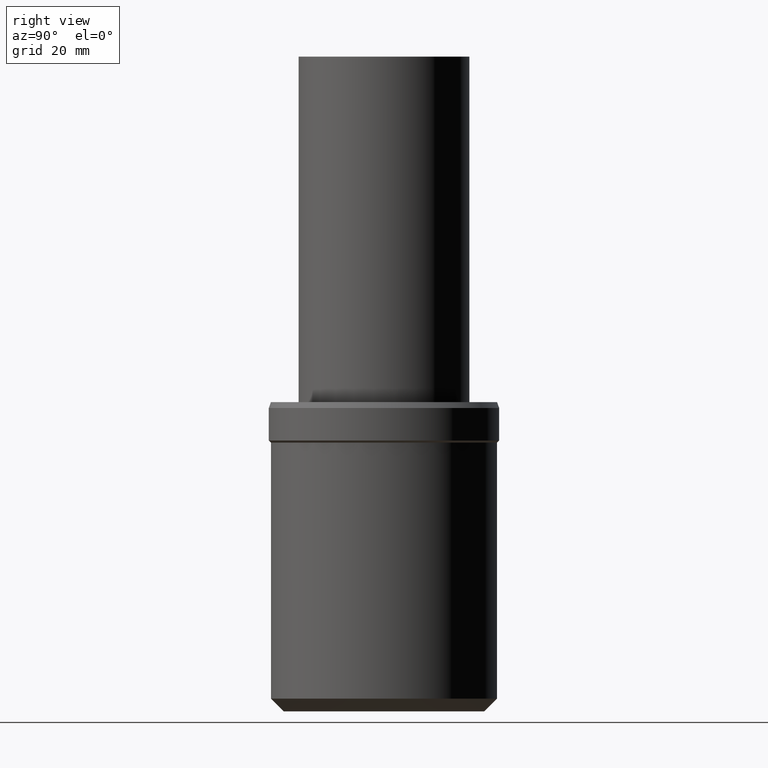
[diagram: clean part render]
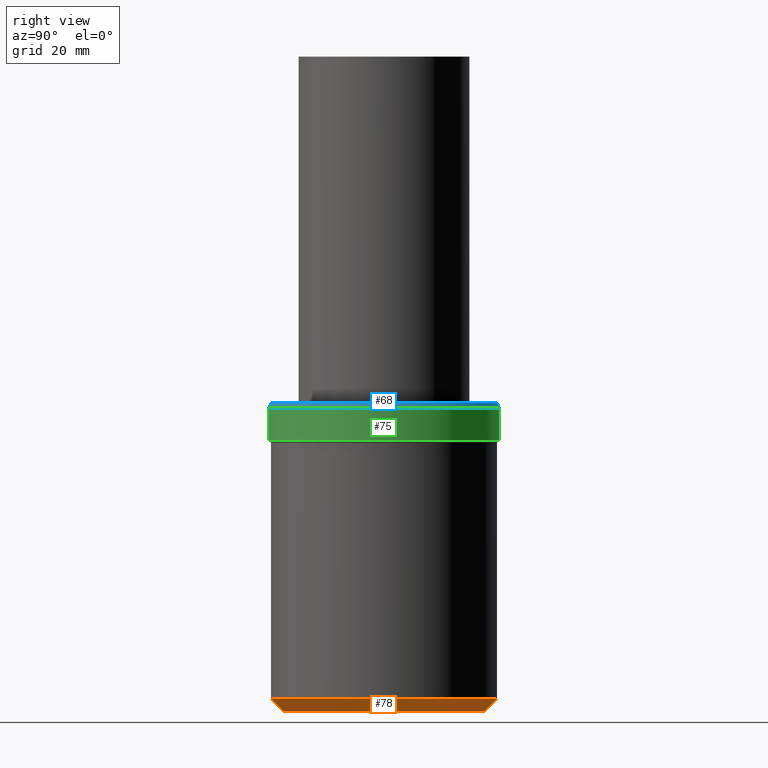
[diagram: same view with three faces highlighted in distinct colors, each labeled with its STEP entity id]
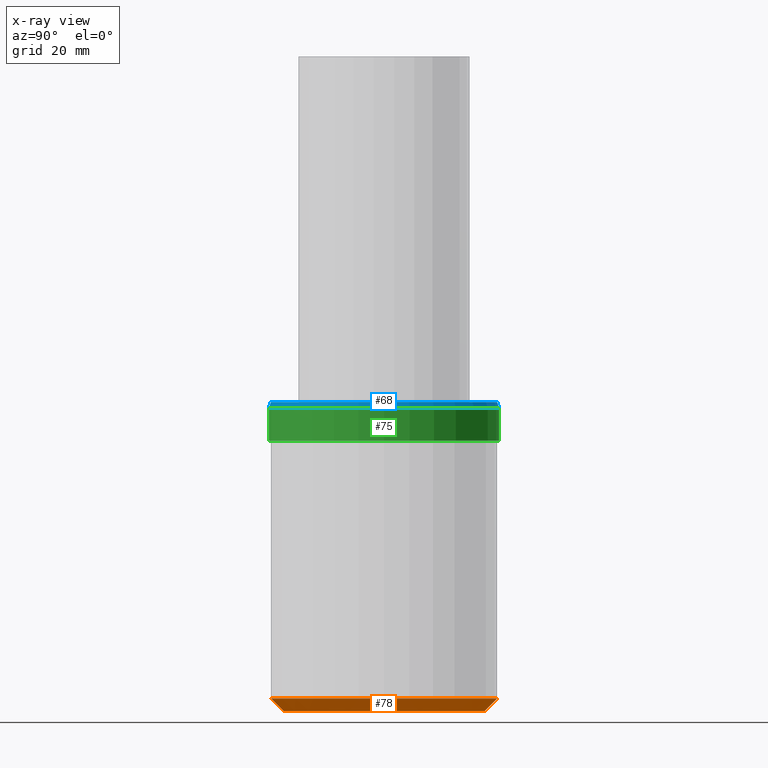
[diagram: x-ray of the same camera — body ghosted, the three highlighted faces saturated]
A machine part, right view with three faces highlighted in distinct colors.
The next image is the same camera in x-ray (body ghosted, the three faces saturated) — at least one of them is partly hidden behind the body in this view.
Their STEP definitions:

[orange] entity #78 — the highlighted conical surface has half-angle 45 deg.
#42=EDGE_CURVE('Unnamed[1]',#104,#104,#105,.T.);
#72=EDGE_CURVE('Unnamed[1]',#148,#148,#149,.T.);
#78=ADVANCED_FACE('Unnamed[1]',(#157,#158),#159,.T.);
#104=VERTEX_POINT('',#181);
#105=CIRCLE('',#182,26.4999999999955);
#148=VERTEX_POINT('',#236);
#149=CIRCLE('',#237,23.5000000000065);
#157=FACE_BOUND('',#247,.T.);
#158=FACE_BOUND('',#248,.T.);
#159=CONICAL_SURFACE('',#249,25.000000000001,0.785398163397447);
#181=CARTESIAN_POINT('',(-1.83697019871428E-016,26.4999999999955,2.99999999998899));
#182=AXIS2_PLACEMENT_3D('',#267,#268,#269);
#236=CARTESIAN_POINT('',(0.0,23.5000000000065,0.0));
#237=AXIS2_PLACEMENT_3D('',#314,#315,#316);
#247=EDGE_LOOP('',(#324));
#248=EDGE_LOOP('',(#325));
#249=AXIS2_PLACEMENT_3D('',#326,#327,#328);
#267=CARTESIAN_POINT('',(-1.83697019871428E-016,-3.67394039742856E-016,2.99999999998899));
#268=DIRECTION('',(6.12323399573677E-017,1.22464679914735E-016,-1.0));
#269=DIRECTION('',(-1.23259516440783E-032,1.0,1.22464679914735E-016));
#314=CARTESIAN_POINT('',(0.0,0.0,0.0));
#315=DIRECTION('',(6.12323399573677E-017,1.22464679914735E-016,-1.0));
#316=DIRECTION('',(-1.23259516440783E-032,1.0,1.22464679914735E-016));
#324=ORIENTED_EDGE('',*,*,#72,.F.);
#325=ORIENTED_EDGE('',*,*,#42,.T.);
#326=CARTESIAN_POINT('',(-9.18485099357145E-017,-1.83697019871427E-016,1.49999999999449));
#327=DIRECTION('',(-6.12323399573677E-017,-1.22464679914735E-016,1.0));
#328=DIRECTION('',(-1.23259516440783E-032,1.0,1.22464679914735E-016));

[blue] entity #68 — the highlighted conical surface has half-angle 20 deg.
#49=EDGE_CURVE('Unnamed[1]',#113,#113,#114,.T.);
#68=ADVANCED_FACE('Unnamed[1]',(#141,#142),#143,.T.);
#86=EDGE_CURVE('Unnamed[1]',#171,#171,#172,.T.);
#113=VERTEX_POINT('',#192);
#114=CIRCLE('',#193,26.4999999999802);
#141=FACE_BOUND('',#227,.T.);
#142=FACE_BOUND('',#228,.T.);
#143=CONICAL_SURFACE('',#229,26.7499999999792,0.349065850398424);
#171=VERTEX_POINT('',#264);
#172=CIRCLE('',#265,26.9999999999782);
#192=CARTESIAN_POINT('',(-4.43934464690906E-015,26.4999999999802,72.4999999999984));
#193=AXIS2_PLACEMENT_3D('',#274,#275,#276);
#227=EDGE_LOOP('',(#306));
#228=EDGE_LOOP('',(#307));
#229=AXIS2_PLACEMENT_3D('',#308,#309,#310);
#264=CARTESIAN_POINT('',(-4.35522741122266E-015,26.9999999999782,71.1262612902747));
#265=AXIS2_PLACEMENT_3D('',#341,#342,#343);
#274=CARTESIAN_POINT('',(-4.43934464690906E-015,-8.87868929381811E-015,72.4999999999984));
#275=DIRECTION('',(6.12323399573677E-017,1.22464679914735E-016,-1.0));
#276=DIRECTION('',(-1.23259516440783E-032,1.0,1.22464679914735E-016));
#306=ORIENTED_EDGE('',*,*,#86,.F.);
#307=ORIENTED_EDGE('',*,*,#49,.T.);
#308=CARTESIAN_POINT('',(-4.39728602906586E-015,-8.79457205813172E-015,71.8131306451366));
#309=DIRECTION('',(6.12323399573677E-017,1.22464679914735E-016,-1.0));
#310=DIRECTION('',(-1.23259516440783E-032,1.0,1.22464679914735E-016));
#341=CARTESIAN_POINT('',(-4.35522741122266E-015,-8.71045482244532E-015,71.1262612902747));
#342=DIRECTION('',(6.12323399573677E-017,1.22464679914735E-016,-1.0));
#343=DIRECTION('',(-1.23259516440783E-032,1.0,1.22464679914735E-016));

[green] entity #75 — the highlighted cylindrical surface (bore or boss wall) has radius 27 mm, axis along (0, 0, -1).
#70=EDGE_CURVE('Unnamed[1]',#145,#145,#146,.T.);
#75=ADVANCED_FACE('Unnamed[1]',(#152,#153),#154,.T.);
#86=EDGE_CURVE('Unnamed[1]',#171,#171,#172,.T.);
#145=VERTEX_POINT('',#232);
#146=CIRCLE('',#233,26.9999999999782);
#152=FACE_BOUND('',#241,.T.);
#153=FACE_BOUND('',#242,.T.);
#154=CYLINDRICAL_SURFACE('',#243,26.9999999999782);
#171=VERTEX_POINT('',#264);
#172=CIRCLE('',#265,26.9999999999782);
#232=CARTESIAN_POINT('',(-3.88825358729119E-015,26.9999999999782,63.4999999999729));
#233=AXIS2_PLACEMENT_3D('',#311,#312,#313);
#241=EDGE_LOOP('',(#318));
#242=EDGE_LOOP('',(#319));
#243=AXIS2_PLACEMENT_3D('',#320,#321,#322);
#264=CARTESIAN_POINT('',(-4.35522741122266E-015,26.9999999999782,71.1262612902747));
#265=AXIS2_PLACEMENT_3D('',#341,#342,#343);
#311=CARTESIAN_POINT('',(-3.88825358729119E-015,-7.77650717458237E-015,63.4999999999729));
#312=DIRECTION('',(6.12323399573677E-017,1.22464679914735E-016,-1.0));
#313=DIRECTION('',(-1.23259516440783E-032,1.0,1.22464679914735E-016));
#318=ORIENTED_EDGE('',*,*,#70,.F.);
#319=ORIENTED_EDGE('',*,*,#86,.T.);
#320=CARTESIAN_POINT('',(-4.12174049925692E-015,-8.24348099851384E-015,67.3131306451238));
#321=DIRECTION('',(6.12323399573677E-017,1.22464679914735E-016,-1.0));
#322=DIRECTION('',(-1.23259516440783E-032,1.0,1.22464679914735E-016));
#341=CARTESIAN_POINT('',(-4.35522741122266E-015,-8.71045482244532E-015,71.1262612902747));
#342=DIRECTION('',(6.12323399573677E-017,1.22464679914735E-016,-1.0));
#343=DIRECTION('',(-1.23259516440783E-032,1.0,1.22464679914735E-016));